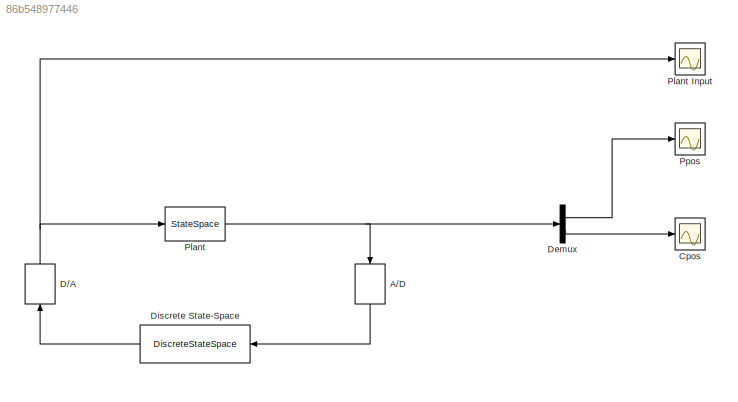
MODEL slx_86b548977446
KIND model
CONFIG AbsTol = auto
CONFIG EnableMultiTasking = off
CONFIG FixedStep = T
CONFIG MaxStep = auto
CONFIG MinStep = auto
CONFIG RelTol = 1e-3
CONFIG SampleTimeConstraint = Unconstrained
CONFIG Solver = FixedStepAuto
CONFIG SolverName = FixedStepAuto
CONFIG StartTime = 0.0
CONFIG StopTime = 2
BLOCK [ZeroOrderHold] A//D
  SampleTime = T
BLOCK [Scope] Cpos 
  NumInputPorts = 1
  Ports = [1]
  ScopeSpecificationString = Simulink.scopes.TimeScopeBlockCfg('CurrentConfiguration', extmgr.ConfigurationSet(extmgr.Configuration('Core','General UI',true),extmgr.Configuration('Core','Source UI',true),extmgr.Configuration('Sources','WiredSimulink',true,'DataLoggingVariableName','ScopeData2'),extmgr.Configuration('Visuals','Time Domain',true,'SerializedDisplays',{struct('MinYLimReal','-41.6397','MaxYLimReal','5.41061','YLab...<+1442ch>
BLOCK [ZeroOrderHold] D//A
  SampleTime = T
BLOCK [Demux] Demux
  DisplayOption = bar
  Outputs = 2
  Ports = [1, 2]
BLOCK [DiscreteStateSpace] Discrete State-Space
  A = A_obs
  B = B_obs
  C = C_obs
  D = D_obs
  SampleTime = T
  X0 = x0_obs
BLOCK [StateSpace] Plant
  A = A
  B = q*B
  C = C
  D = [0; 0]
  Ports = [1, 1]
  X0 = x0
BLOCK [Scope] Plant Input 
  NumInputPorts = 1
  Ports = [1]
  ScopeSpecificationString = Simulink.scopes.TimeScopeBlockCfg('CurrentConfiguration', extmgr.ConfigurationSet(extmgr.Configuration('Core','General UI',true),extmgr.Configuration('Core','Source UI',true),extmgr.Configuration('Sources','WiredSimulink',true,'DataLoggingVariableName','ScopeData1'),extmgr.Configuration('Visuals','Time Domain',true,'SerializedDisplays',{struct('MinYLimReal','-5.91052','MaxYLimReal','1.84602','YLab...<+1436ch>
BLOCK [Scope] Ppos 
  NumInputPorts = 1
  Ports = [1]
  ScopeSpecificationString = Simulink.scopes.TimeScopeBlockCfg('CurrentConfiguration', extmgr.ConfigurationSet(extmgr.Configuration('Core','General UI',true),extmgr.Configuration('Core','Source UI',true),extmgr.Configuration('Sources','WiredSimulink',true,'DataLoggingVariableName','ScopeData1'),extmgr.Configuration('Visuals','Time Domain',true,'SerializedDisplays',{struct('MinYLimReal','-0.12628','MaxYLimReal','0.20292','YLab...<+1443ch>
LINE A//D:1 -> Discrete State-Space:1
NET D//A:1 -> Plant Input :1, Plant:1
LINE Demux:1 -> Ppos :1
LINE Demux:2 -> Cpos :1
LINE Discrete State-Space:1 -> D//A:1
NET Plant:1 -> A//D:1, Demux:1
note: NET lines group one-source signal fan-out (src -> all destinations, sorted); 1:1 wires keep LINE
